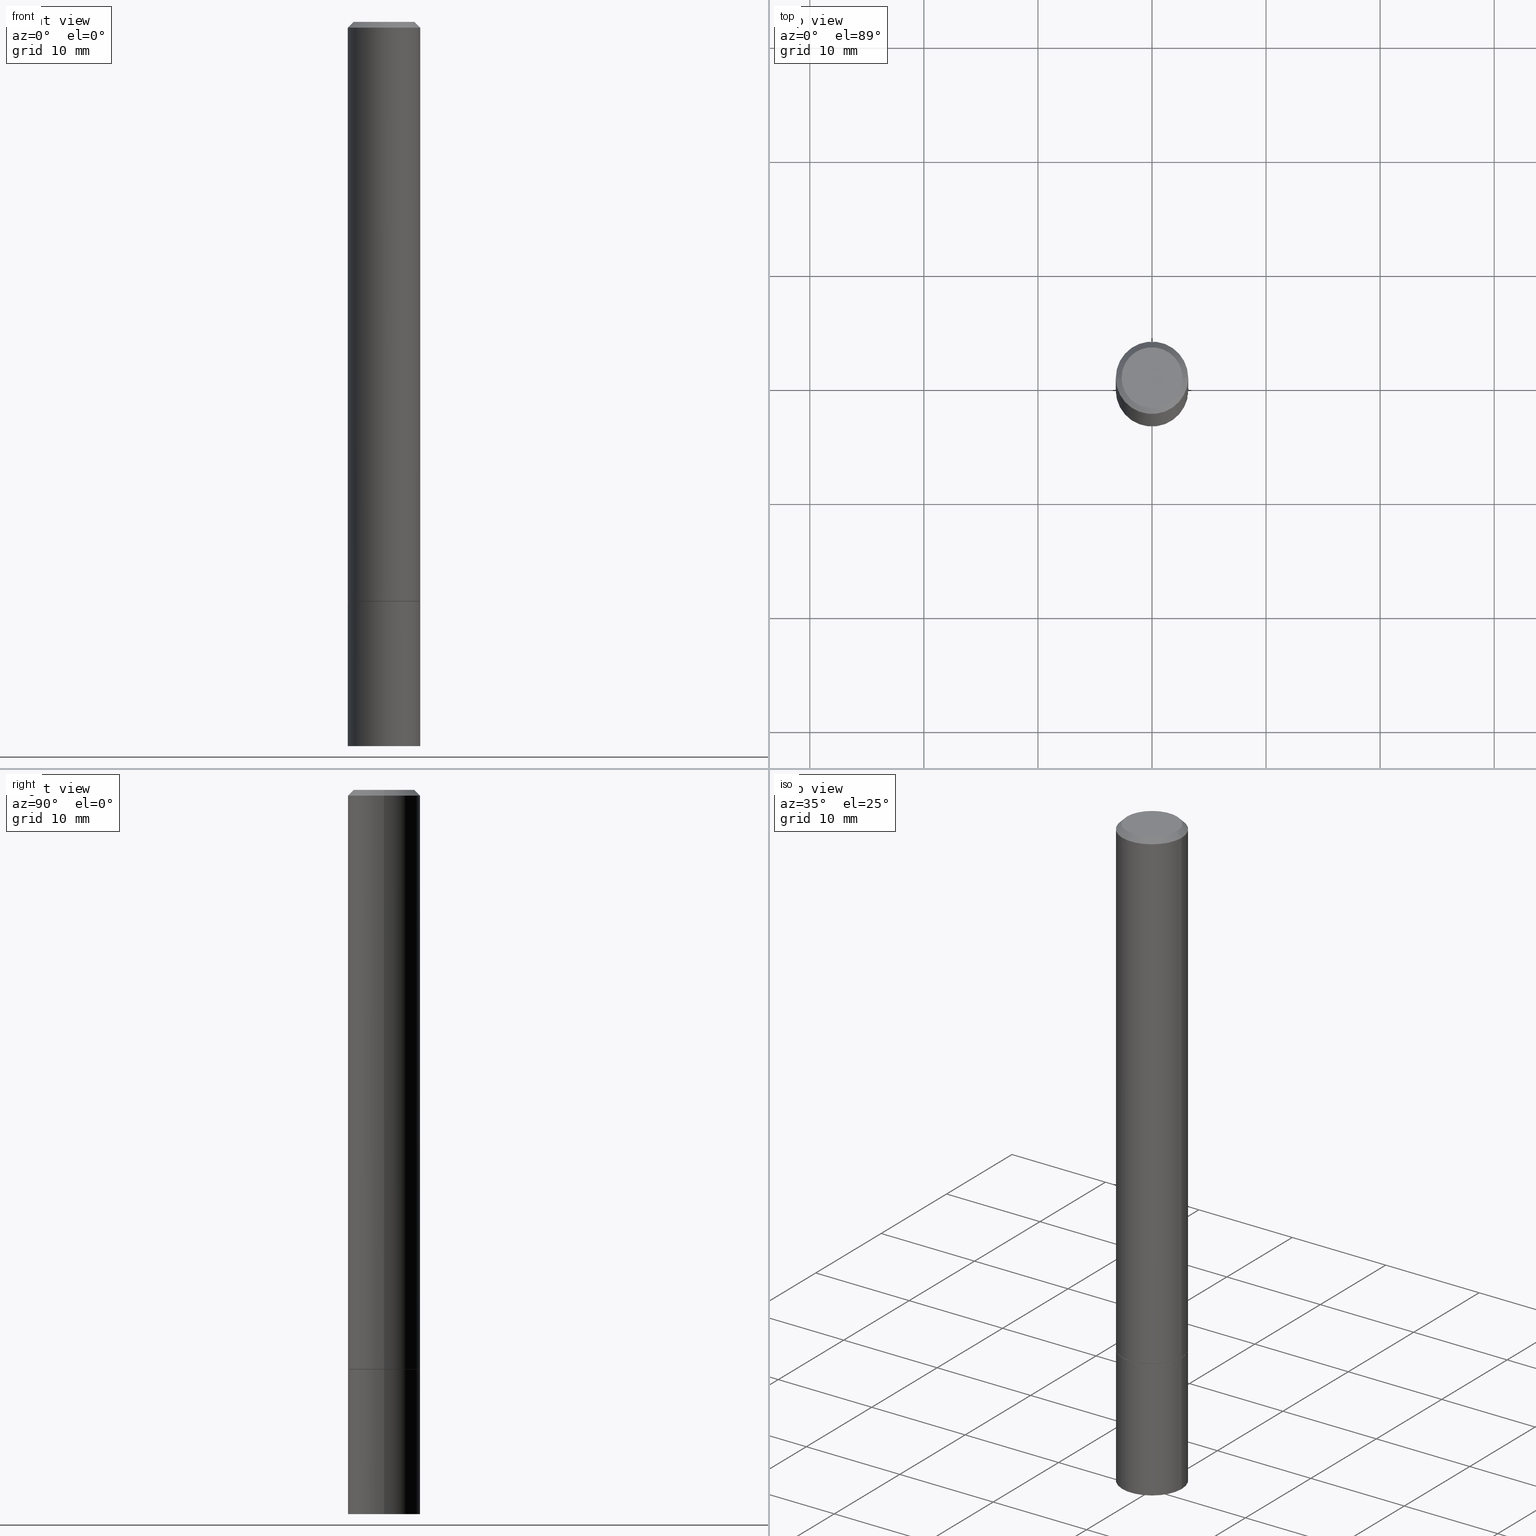
[diagram: canonical four-view strip — front | top / right | iso, engineering-drawing reading convention]
A machine part, canonical four-view strip (front | top / right | iso — engineering-drawing reading convention). The complete STEP part file that produces these views, byte-faithful:
ISO-10303-21;
HEADER;
FILE_DESCRIPTION (( 'STEP AP203' ),
    '1' );
FILE_NAME ('37184.STEP',
    '2024-02-27T20:49:56',
    ( '' ),
    ( '' ),
    'SwSTEP 2.0',
    'SolidWorks 2023',
    '' );
FILE_SCHEMA (( 'CONFIG_CONTROL_DESIGN' ));
ENDSEC;

DATA;
#1 = CIRCLE ( 'NONE', #197, 0.1250000000000000000 ) ;
#2 = VERTEX_POINT ( 'NONE', #170 ) ;
#3 = LOCAL_TIME ( 15, 49, 56.00000000000000000, #119 ) ;
#4 = ORIENTED_EDGE ( 'NONE', *, *, #275, .T. ) ;
#5 = DESIGN_CONTEXT ( 'detailed design', #45, 'design' ) ;
#6 = CALENDAR_DATE ( 2024, 27, 2 ) ;
#7 = APPROVAL_ROLE ( '' ) ;
#8 = SECURITY_CLASSIFICATION_LEVEL ( 'unclassified' ) ;
#9 = CARTESIAN_POINT ( 'NONE',  ( 0.000000000000000000, 0.000000000000000000, 0.000000000000000000 ) ) ;
#10 = DIMENSIONAL_EXPONENTS ( 1.000000000000000000, 0.000000000000000000, 0.000000000000000000, 0.000000000000000000, 0.000000000000000000, 0.000000000000000000, 0.000000000000000000 ) ;
#11 = EDGE_CURVE ( 'NONE', #147, #2, #365, .T. ) ;
#12 = CONICAL_SURFACE ( 'NONE', #345, 0.1239999999999999991, 0.7853981633974141952 ) ;
#13 = SECURITY_CLASSIFICATION ( '', '', #8 ) ;
#14 = DIRECTION ( 'NONE',  ( 1.000000000000000000, -6.982962677686270655E-15, 0.000000000000000000 ) ) ;
#15 = DIRECTION ( 'NONE',  ( 2.438088387897960049E-29, -3.491481338843145188E-15, -1.000000000000000000 ) ) ;
#16 = ORIENTED_EDGE ( 'NONE', *, *, #207, .T. ) ;
#17 = CARTESIAN_POINT ( 'NONE',  ( 4.890937612370280165E-31, -6.982962677686301470E-17, -0.02000000000000003164 ) ) ;
#18 = AXIS2_PLACEMENT_3D ( 'NONE', #52, #169, #289 ) ;
#19 = DIRECTION ( 'NONE',  ( 1.000000000000000000, -6.982962677686270655E-15, 0.000000000000000000 ) ) ;
#20 = DIRECTION ( 'NONE',  ( -2.445468806185136597E-29, 3.491481338843145583E-15, 1.000000000000000000 ) ) ;
#21 = EDGE_LOOP ( 'NONE', ( #108, #232, #200, #326 ) ) ;
#22 = DIRECTION ( 'NONE',  ( -2.445468806185136597E-29, 3.491481338843145583E-15, 1.000000000000000000 ) ) ;
#23 = ORIENTED_EDGE ( 'NONE', *, *, #98, .F. ) ;
#24 = CARTESIAN_POINT ( 'NONE',  ( -0.1250000000000000000, 8.881784197001252323E-16, -6.148668862818632227E-30 ) ) ;
#25 = LOCAL_TIME ( 15, 49, 56.00000000000000000, #94 ) ;
#26 = CARTESIAN_POINT ( 'NONE',  ( 0.1249999999999997641, -9.273918764983027713E-16, -0.02000000000000003164 ) ) ;
#27 = ORIENTED_EDGE ( 'NONE', *, *, #32, .T. ) ;
#28 = ADVANCED_FACE ( 'NONE', ( #56 ), #12, .T. ) ;
#29 = ORIENTED_EDGE ( 'NONE', *, *, #85, .T. ) ;
#30 = PERSON_AND_ORGANIZATION ( #307, #171 ) ;
#31 = AXIS2_PLACEMENT_3D ( 'NONE', #90, #280, #278 ) ;
#32 = EDGE_CURVE ( 'NONE', #308, #194, #252, .T. ) ;
#33 = APPROVAL_DATE_TIME ( #63, #57 ) ;
#34 = COORDINATED_UNIVERSAL_TIME_OFFSET ( 5, 0, .BEHIND. ) ;
#35 = DIRECTION ( 'NONE',  ( 1.000000000000000000, -6.982962677686270655E-15, 0.000000000000000000 ) ) ;
#36 = CIRCLE ( 'NONE', #121, 0.1250000000000000000 ) ;
#37 = PERSON_AND_ORGANIZATION ( #307, #171 ) ;
#38 = COORDINATED_UNIVERSAL_TIME_OFFSET ( 5, 0, .BEHIND. ) ;
#39 = DIRECTION ( 'NONE',  ( 1.000000000000000000, -6.982962677686266711E-15, 0.000000000000000000 ) ) ;
#40 = ADVANCED_FACE ( 'NONE', ( #111 ), #116, .T. ) ;
#41 = VERTEX_POINT ( 'NONE', #315 ) ;
#42 = CC_DESIGN_PERSON_AND_ORGANIZATION_ASSIGNMENT ( #37, #238, ( #246 ) ) ;
#43 = ORIENTED_EDGE ( 'NONE', *, *, #85, .F. ) ;
#44 = FACE_OUTER_BOUND ( 'NONE', #312, .T. ) ;
#45 = APPLICATION_CONTEXT ( 'configuration controlled 3d designs of mechanical parts and assemblies' ) ;
#46 = ORIENTED_EDGE ( 'NONE', *, *, #317, .T. ) ;
#47 = AXIS2_PLACEMENT_3D ( 'NONE', #272, #69, #244 ) ;
#48 = CC_DESIGN_APPROVAL ( #57, ( #246 ) ) ;
#49 = CARTESIAN_POINT ( 'NONE',  ( -0.1239999999999999991, -6.096591230995545328E-15, -2.000000000000000000 ) ) ;
#50 = ORIENTED_EDGE ( 'NONE', *, *, #231, .F. ) ;
#51 = CARTESIAN_POINT ( 'NONE',  ( 0.000000000000000000, 0.000000000000000000, 0.000000000000000000 ) ) ;
#52 = CARTESIAN_POINT ( 'NONE',  ( 8.728703347108443769E-16, 0.1249999999999912709, -2.500000000000000444 ) ) ;
#53 = ORIENTED_EDGE ( 'NONE', *, *, #95, .T. ) ;
#54 = AXIS2_PLACEMENT_3D ( 'NONE', #105, #299, #187 ) ;
#55 =( NAMED_UNIT ( * ) PLANE_ANGLE_UNIT ( ) SI_UNIT ( $, .RADIAN. ) );
#56 = FACE_OUTER_BOUND ( 'NONE', #163, .T. ) ;
#57 = APPROVAL ( #155, 'UNSPECIFIED' ) ;
#58 = CARTESIAN_POINT ( 'NONE',  ( 4.890937612370280165E-31, -6.982962677686301470E-17, -0.02000000000000003164 ) ) ;
#59 = EDGE_CURVE ( 'NONE', #194, #298, #282, .T. ) ;
#60 = CARTESIAN_POINT ( 'NONE',  ( 0.1239999999999999991, -7.848850049719387701E-15, -2.000000000000000000 ) ) ;
#61 = ADVANCED_FACE ( 'NONE', ( #348 ), #156, .T. ) ;
#62 = DIRECTION ( 'NONE',  ( 1.000000000000000000, -6.982962677686265922E-15, 4.876176775795935793E-29 ) ) ;
#63 = DATE_AND_TIME ( #6, #25 ) ;
#64 = DATE_AND_TIME ( #92, #215 ) ;
#65 = AXIS2_PLACEMENT_3D ( 'NONE', #58, #287, #150 ) ;
#66 = VECTOR ( 'NONE', #142, 39.37007874015748143 ) ;
#67 = DIRECTION ( 'NONE',  ( 1.000000000000000000, 0.000000000000000000, 0.000000000000000000 ) ) ;
#68 = CARTESIAN_POINT ( 'NONE',  ( 7.332110811570563480E-16, 0.1049999999999997741, -3.666055405785295052E-16 ) ) ;
#69 = DIRECTION ( 'NONE',  ( -2.445468806185136597E-29, 3.491481338843145583E-15, 1.000000000000000000 ) ) ;
#70 = AXIS2_PLACEMENT_3D ( 'NONE', #199, #364, #77 ) ;
#71 = LINE ( 'NONE', #131, #134 ) ;
#72 = DIRECTION ( 'NONE',  ( 1.000000000000000000, -6.982962677686266711E-15, 4.876176775795935793E-29 ) ) ;
#73 = VERTEX_POINT ( 'NONE', #322 ) ;
#74 = PLANE ( 'NONE',  #296 ) ;
#75 = ORIENTED_EDGE ( 'NONE', *, *, #59, .F. ) ;
#76 = DIRECTION ( 'NONE',  ( -2.445468806185136597E-29, 3.491481338843145583E-15, 1.000000000000000000 ) ) ;
#77 = DIRECTION ( 'NONE',  ( -1.000000000000000000, 6.982962677686266711E-15, 0.000000000000000000 ) ) ;
#78 = EDGE_CURVE ( 'NONE', #41, #73, #36, .T. ) ;
#79 = CIRCLE ( 'NONE', #47, 0.1250000000000000000 ) ;
#80 = CC_DESIGN_APPROVAL ( #176, ( #13 ) ) ;
#81 = EDGE_CURVE ( 'NONE', #100, #308, #324, .T. ) ;
#82 = ORIENTED_EDGE ( 'NONE', *, *, #136, .T. ) ;
#83 = DIRECTION ( 'NONE',  ( -2.445468806185136597E-29, 3.491481338843145583E-15, 1.000000000000000000 ) ) ;
#84 = DATE_AND_TIME ( #182, #263 ) ;
#85 = EDGE_CURVE ( 'NONE', #73, #41, #214, .T. ) ;
#86 =( LENGTH_UNIT ( ) NAMED_UNIT ( * ) SI_UNIT ( $, .METRE. ) );
#87 = PRODUCT ( '37184', '37184', '', ( #351 ) ) ;
#88 = AXIS2_PLACEMENT_3D ( 'NONE', #247, #193, #14 ) ;
#89 =( GEOMETRIC_REPRESENTATION_CONTEXT ( 3 ) GLOBAL_UNCERTAINTY_ASSIGNED_CONTEXT ( ( #124 ) ) GLOBAL_UNIT_ASSIGNED_CONTEXT ( ( #311, #55, #145 ) ) REPRESENTATION_CONTEXT ( 'NONE', 'WORKASPACE' ) );
#90 = CARTESIAN_POINT ( 'NONE',  ( 0.000000000000000000, 0.000000000000000000, 0.000000000000000000 ) ) ;
#91 = PERSON_AND_ORGANIZATION ( #307, #171 ) ;
#92 = CALENDAR_DATE ( 2024, 27, 2 ) ;
#93 = ADVANCED_FACE ( 'NONE', ( #44 ), #267, .F. ) ;
#94 = COORDINATED_UNIVERSAL_TIME_OFFSET ( 5, 0, .BEHIND. ) ;
#95 = EDGE_CURVE ( 'NONE', #338, #41, #71, .T. ) ;
#96 = AXIS2_PLACEMENT_3D ( 'NONE', #138, #224, #329 ) ;
#97 = PERSON_AND_ORGANIZATION_ROLE ( 'design_owner' ) ;
#98 = EDGE_CURVE ( 'NONE', #298, #194, #258, .T. ) ;
#99 = CARTESIAN_POINT ( 'NONE',  ( 4.888492143564087591E-29, -6.979471196347447369E-15, -1.998999999999999888 ) ) ;
#100 = VERTEX_POINT ( 'NONE', #358 ) ;
#101 = DIRECTION ( 'NONE',  ( -2.445468806185136597E-29, 3.491481338843145583E-15, 1.000000000000000000 ) ) ;
#102 = EDGE_LOOP ( 'NONE', ( #305, #363, #4, #190 ) ) ;
#103 = AXIS2_PLACEMENT_3D ( 'NONE', #17, #192, #39 ) ;
#104 = DIRECTION ( 'NONE',  ( -2.445468806185136597E-29, 3.491481338843145583E-15, 1.000000000000000000 ) ) ;
#105 = CARTESIAN_POINT ( 'NONE',  ( 0.000000000000000000, 0.000000000000000000, 0.000000000000000000 ) ) ;
#106 = EDGE_CURVE ( 'NONE', #133, #194, #219, .T. ) ;
#107 = CARTESIAN_POINT ( 'NONE',  ( -0.1249999999999997641, 8.030407079339186601E-16, -0.02000000000000003164 ) ) ;
#108 = ORIENTED_EDGE ( 'NONE', *, *, #333, .T. ) ;
#109 = PLANE ( 'NONE',  #18 ) ;
#110 = CYLINDRICAL_SURFACE ( 'NONE', #31, 0.1249999999999998751 ) ;
#111 = FACE_OUTER_BOUND ( 'NONE', #21, .T. ) ;
#112 = PRODUCT_DEFINITION ( 'UNKNOWN', '', #246, #5 ) ;
#113 = VERTEX_POINT ( 'NONE', #222 ) ;
#114 = AXIS2_PLACEMENT_3D ( 'NONE', #160, #20, #269 ) ;
#115 = CC_DESIGN_SECURITY_CLASSIFICATION ( #13, ( #246 ) ) ;
#116 = CYLINDRICAL_SURFACE ( 'NONE', #233, 0.1250000000000000000 ) ;
#117 = EDGE_CURVE ( 'NONE', #133, #2, #79, .T. ) ;
#118 = LINE ( 'NONE', #107, #288 ) ;
#119 = COORDINATED_UNIVERSAL_TIME_OFFSET ( 5, 0, .BEHIND. ) ;
#120 = LINE ( 'NONE', #60, #153 ) ;
#121 = AXIS2_PLACEMENT_3D ( 'NONE', #297, #104, #19 ) ;
#122 = APPROVAL_PERSON_ORGANIZATION ( #185, #144, #7 ) ;
#123 = PERSON_AND_ORGANIZATION ( #307, #171 ) ;
#124 = UNCERTAINTY_MEASURE_WITH_UNIT (LENGTH_MEASURE( 1.000000000000000082E-05 ), #311, 'distance_accuracy_value', 'NONE');
#125 = PERSON_AND_ORGANIZATION_ROLE ( 'creator' ) ;
#126 = APPLICATION_PROTOCOL_DEFINITION ( 'international standard', 'config_control_design', 1994, #178 ) ;
#127 = CIRCLE ( 'NONE', #271, 0.1250000000000000000 ) ;
#128 = CIRCLE ( 'NONE', #177, 0.1239999999999999991 ) ;
#129 = DIRECTION ( 'NONE',  ( -1.000000000000000000, 6.982962677686265922E-15, -4.876176775795935793E-29 ) ) ;
#130 = ORIENTED_EDGE ( 'NONE', *, *, #11, .T. ) ;
#131 = CARTESIAN_POINT ( 'NONE',  ( 0.1250000000000000000, -8.728703347107833388E-16, 6.095220969744919741E-30 ) ) ;
#132 = FACE_OUTER_BOUND ( 'NONE', #225, .T. ) ;
#133 = VERTEX_POINT ( 'NONE', #217 ) ;
#134 = VECTOR ( 'NONE', #166, 39.37007874015748143 ) ;
#135 = CC_DESIGN_APPROVAL ( #144, ( #112 ) ) ;
#136 = EDGE_CURVE ( 'NONE', #2, #133, #127, .T. ) ;
#137 = DIRECTION ( 'NONE',  ( -1.000000000000000000, 6.982962677686265922E-15, -4.876176775795935793E-29 ) ) ;
#138 = CARTESIAN_POINT ( 'NONE',  ( 4.890937612370273194E-29, -6.982962677686291165E-15, -2.000000000000000000 ) ) ;
#139 = DIRECTION ( 'NONE',  ( 2.445468806185136597E-29, -3.491481338843145583E-15, -1.000000000000000000 ) ) ;
#140 = ORIENTED_EDGE ( 'NONE', *, *, #117, .F. ) ;
#141 = CIRCLE ( 'NONE', #319, 0.1239999999999999991 ) ;
#142 = DIRECTION ( 'NONE',  ( -2.445468806185136877E-29, 3.491481338843145188E-15, 1.000000000000000000 ) ) ;
#143 = EDGE_LOOP ( 'NONE', ( #328, #255, #75, #227 ) ) ;
#144 = APPROVAL ( #183, 'UNSPECIFIED' ) ;
#145 =( NAMED_UNIT ( * ) SI_UNIT ( $, .STERADIAN. ) SOLID_ANGLE_UNIT ( ) );
#146 = ORIENTED_EDGE ( 'NONE', *, *, #341, .F. ) ;
#147 = VERTEX_POINT ( 'NONE', #49 ) ;
#148 = PERSON_AND_ORGANIZATION ( #307, #171 ) ;
#149 = VECTOR ( 'NONE', #295, 39.37007874015748143 ) ;
#150 = DIRECTION ( 'NONE',  ( 1.000000000000000000, -6.982962677686266711E-15, 0.000000000000000000 ) ) ;
#151 = CARTESIAN_POINT ( 'NONE',  ( 4.890937612370280165E-31, -6.982962677686301470E-17, -0.02000000000000003164 ) ) ;
#152 = CARTESIAN_POINT ( 'NONE',  ( 6.113672015462842613E-29, -8.728703347107864943E-15, -2.500000000000000000 ) ) ;
#153 = VECTOR ( 'NONE', #203, 39.37007874015748854 ) ;
#154 = CC_DESIGN_DATE_AND_TIME_ASSIGNMENT ( #260, #261, ( #112 ) ) ;
#155 = APPROVAL_STATUS ( 'not_yet_approved' ) ;
#156 = CYLINDRICAL_SURFACE ( 'NONE', #189, 0.1250000000000000000 ) ;
#157 = FACE_OUTER_BOUND ( 'NONE', #274, .T. ) ;
#158 = AXIS2_PLACEMENT_3D ( 'NONE', #68, #15, #137 ) ;
#159 = DIRECTION ( 'NONE',  ( -2.445468806185136597E-29, 3.491481338843145583E-15, 1.000000000000000000 ) ) ;
#160 = CARTESIAN_POINT ( 'NONE',  ( 0.000000000000000000, 0.000000000000000000, 0.000000000000000000 ) ) ;
#161 = ORIENTED_EDGE ( 'NONE', *, *, #275, .F. ) ;
#162 = LINE ( 'NONE', #356, #149 ) ;
#163 = EDGE_LOOP ( 'NONE', ( #167, #332, #46, #250 ) ) ;
#164 = AXIS2_PLACEMENT_3D ( 'NONE', #242, #353, #62 ) ;
#165 = CIRCLE ( 'NONE', #313, 0.1250000000000000000 ) ;
#166 = DIRECTION ( 'NONE',  ( -2.445468806185136877E-29, 3.491481338843145188E-15, 1.000000000000000000 ) ) ;
#167 = ORIENTED_EDGE ( 'NONE', *, *, #11, .F. ) ;
#168 = CARTESIAN_POINT ( 'NONE',  ( -0.1249999999999997641, 8.030407079339186601E-16, -0.02000000000000003164 ) ) ;
#169 = DIRECTION ( 'NONE',  ( 2.438088387897960049E-29, -3.491481338843145188E-15, -1.000000000000000000 ) ) ;
#170 = CARTESIAN_POINT ( 'NONE',  ( -0.1250000000000000000, -2.636471991862026946E-15, -1.998999999999999888 ) ) ;
#171 = ORGANIZATION ( 'UNSPECIFIED', 'UNSPECIFIED', '' ) ;
#172 = FACE_OUTER_BOUND ( 'NONE', #354, .T. ) ;
#173 = CARTESIAN_POINT ( 'NONE',  ( 4.890937612370273194E-29, -6.982962677686291165E-15, -2.000000000000000000 ) ) ;
#174 = APPROVAL_DATE_TIME ( #344, #176 ) ;
#175 = EDGE_LOOP ( 'NONE', ( #268, #82, #330, #23 ) ) ;
#176 = APPROVAL ( #210, 'UNSPECIFIED' ) ;
#177 = AXIS2_PLACEMENT_3D ( 'NONE', #331, #76, #249 ) ;
#178 = APPLICATION_CONTEXT ( 'configuration controlled 3d designs of mechanical parts and assemblies' ) ;
#179 = SHAPE_DEFINITION_REPRESENTATION ( #262, #321 ) ;
#180 = CARTESIAN_POINT ( 'NONE',  ( -0.1250000000000000000, -6.967654592696952427E-15, -2.500000000000000000 ) ) ;
#181 = ADVANCED_FACE ( 'NONE', ( #132 ), #303, .T. ) ;
#182 = CALENDAR_DATE ( 2024, 27, 2 ) ;
#183 = APPROVAL_STATUS ( 'not_yet_approved' ) ;
#184 = VECTOR ( 'NONE', #206, 39.37007874015748854 ) ;
#185 = PERSON_AND_ORGANIZATION ( #307, #171 ) ;
#186 = EDGE_CURVE ( 'NONE', #2, #298, #162, .T. ) ;
#187 = DIRECTION ( 'NONE',  ( 1.000000000000000000, -6.982962677686265922E-15, 4.876176775795935232E-29 ) ) ;
#188 = FACE_OUTER_BOUND ( 'NONE', #196, .T. ) ;
#189 = AXIS2_PLACEMENT_3D ( 'NONE', #195, #101, #72 ) ;
#190 = ORIENTED_EDGE ( 'NONE', *, *, #98, .T. ) ;
#191 = AXIS2_PLACEMENT_3D ( 'NONE', #151, #139, #362 ) ;
#192 = DIRECTION ( 'NONE',  ( -2.445468806185136597E-29, 3.491481338843145583E-15, 1.000000000000000000 ) ) ;
#193 = DIRECTION ( 'NONE',  ( -2.445468806185136597E-29, 3.491481338843145583E-15, 1.000000000000000000 ) ) ;
#194 = VERTEX_POINT ( 'NONE', #325 ) ;
#195 = CARTESIAN_POINT ( 'NONE',  ( 0.000000000000000000, 0.000000000000000000, 0.000000000000000000 ) ) ;
#196 = EDGE_LOOP ( 'NONE', ( #223, #29 ) ) ;
#197 = AXIS2_PLACEMENT_3D ( 'NONE', #152, #201, #366 ) ;
#198 = CONICAL_SURFACE ( 'NONE', #191, 0.1249999999999997641, 0.7853981633974473908 ) ;
#199 = CARTESIAN_POINT ( 'NONE',  ( 4.890937612370280165E-31, -6.982962677686301470E-17, -0.02000000000000003164 ) ) ;
#200 = ORIENTED_EDGE ( 'NONE', *, *, #78, .F. ) ;
#201 = DIRECTION ( 'NONE',  ( -2.445468806185136597E-29, 3.491481338843145583E-15, 1.000000000000000000 ) ) ;
#202 = DIRECTION ( 'NONE',  ( 0.7071067811865469066, -7.319954787623254468E-15, -0.7071067811865482389 ) ) ;
#203 = DIRECTION ( 'NONE',  ( 0.7071067811865232589, -2.468850131082003836E-15, 0.7071067811865715536 ) ) ;
#204 = VECTOR ( 'NONE', #359, 39.37007874015748143 ) ;
#205 = AXIS2_PLACEMENT_3D ( 'NONE', #9, #213, #67 ) ;
#206 = DIRECTION ( 'NONE',  ( -0.7071067811865232589, 7.493145998870265808E-15, 0.7071067811865715536 ) ) ;
#207 = EDGE_CURVE ( 'NONE', #308, #100, #361, .T. ) ;
#208 = PERSON_AND_ORGANIZATION_ROLE ( 'classification_officer' ) ;
#209 = DIRECTION ( 'NONE',  ( 1.000000000000000000, -6.982962677686266711E-15, 4.876176775795935793E-29 ) ) ;
#210 = APPROVAL_STATUS ( 'not_yet_approved' ) ;
#211 = DIRECTION ( 'NONE',  ( 1.000000000000000000, -6.982962677686267499E-15, 4.876176775795935793E-29 ) ) ;
#212 = PRODUCT_RELATED_PRODUCT_CATEGORY ( 'detail', '', ( #87 ) ) ;
#213 = DIRECTION ( 'NONE',  ( 0.000000000000000000, 0.000000000000000000, 1.000000000000000000 ) ) ;
#214 = CIRCLE ( 'NONE', #88, 0.1250000000000000000 ) ;
#215 = LOCAL_TIME ( 15, 49, 56.00000000000000000, #350 ) ;
#216 = ADVANCED_FACE ( 'NONE', ( #188 ), #74, .F. ) ;
#217 = CARTESIAN_POINT ( 'NONE',  ( 0.1250000000000000000, -7.852341531058230708E-15, -1.998999999999999888 ) ) ;
#218 = CC_DESIGN_PERSON_AND_ORGANIZATION_ASSIGNMENT ( #352, #97, ( #87 ) ) ;
#219 = LINE ( 'NONE', #301, #204 ) ;
#220 = ORIENTED_EDGE ( 'NONE', *, *, #357, .F. ) ;
#221 = CARTESIAN_POINT ( 'NONE',  ( 8.728703347108321496E-16, 0.1249999999999930195, -2.000000000000000444 ) ) ;
#222 = CARTESIAN_POINT ( 'NONE',  ( 0.1239999999999999991, -7.848850049719387701E-15, -2.000000000000000000 ) ) ;
#223 = ORIENTED_EDGE ( 'NONE', *, *, #78, .T. ) ;
#224 = DIRECTION ( 'NONE',  ( -2.445468806185136597E-29, 3.491481338843145583E-15, 1.000000000000000000 ) ) ;
#225 = EDGE_LOOP ( 'NONE', ( #314, #130, #140, #300 ) ) ;
#226 = CARTESIAN_POINT ( 'NONE',  ( 0.1250000000000000000, -9.601573681818648281E-15, -2.500000000000000000 ) ) ;
#227 = ORIENTED_EDGE ( 'NONE', *, *, #106, .F. ) ;
#228 = VECTOR ( 'NONE', #202, 39.37007874015748143 ) ;
#229 = CARTESIAN_POINT ( 'NONE',  ( 0.1049999999999997741, -8.238720831321559881E-16, 5.444276250344138855E-30 ) ) ;
#230 = ORIENTED_EDGE ( 'NONE', *, *, #81, .T. ) ;
#231 = EDGE_CURVE ( 'NONE', #113, #147, #141, .T. ) ;
#232 = ORIENTED_EDGE ( 'NONE', *, *, #357, .T. ) ;
#233 = AXIS2_PLACEMENT_3D ( 'NONE', #234, #340, #209 ) ;
#234 = CARTESIAN_POINT ( 'NONE',  ( 0.000000000000000000, 0.000000000000000000, 0.000000000000000000 ) ) ;
#235 = PERSON_AND_ORGANIZATION_ROLE ( 'design_supplier' ) ;
#236 = CARTESIAN_POINT ( 'NONE',  ( 6.113672015462842613E-29, -8.728703347107864943E-15, -2.500000000000000000 ) ) ;
#237 = APPROVAL_ROLE ( '' ) ;
#238 = PERSON_AND_ORGANIZATION_ROLE ( 'creator' ) ;
#239 = PERSON_AND_ORGANIZATION ( #307, #171 ) ;
#240 = APPROVAL_ROLE ( '' ) ;
#241 = LOCAL_TIME ( 15, 49, 56.00000000000000000, #38 ) ;
#242 = CARTESIAN_POINT ( 'NONE',  ( 4.890937612370273194E-29, -6.982962677686291165E-15, -2.000000000000000000 ) ) ;
#243 = ORIENTED_EDGE ( 'NONE', *, *, #253, .T. ) ;
#244 = DIRECTION ( 'NONE',  ( 1.000000000000000000, -6.982962677686262766E-15, 0.000000000000000000 ) ) ;
#245 = ADVANCED_FACE ( 'NONE', ( #157 ), #264, .F. ) ;
#246 = PRODUCT_DEFINITION_FORMATION_WITH_SPECIFIED_SOURCE ( 'ANY', '', #87, .NOT_KNOWN. ) ;
#247 = CARTESIAN_POINT ( 'NONE',  ( 4.890937612370273194E-29, -6.982962677686291165E-15, -2.000000000000000000 ) ) ;
#248 = DIRECTION ( 'NONE',  ( -2.445468806185136597E-29, 3.491481338843145583E-15, 1.000000000000000000 ) ) ;
#249 = DIRECTION ( 'NONE',  ( 1.000000000000000000, -6.982962677686262766E-15, 0.000000000000000000 ) ) ;
#250 = ORIENTED_EDGE ( 'NONE', *, *, #136, .F. ) ;
#251 = FACE_OUTER_BOUND ( 'NONE', #175, .T. ) ;
#252 = LINE ( 'NONE', #26, #228 ) ;
#253 = EDGE_CURVE ( 'NONE', #279, #338, #1, .T. ) ;
#254 = CYLINDRICAL_SURFACE ( 'NONE', #320, 0.1249999999999998751 ) ;
#255 = ORIENTED_EDGE ( 'NONE', *, *, #186, .T. ) ;
#256 = DIRECTION ( 'NONE',  ( 1.000000000000000000, -6.982962677686262766E-15, 0.000000000000000000 ) ) ;
#257 = EDGE_LOOP ( 'NONE', ( #220, #243, #53, #43 ) ) ;
#258 = CIRCLE ( 'NONE', #103, 0.1249999999999997641 ) ;
#259 = FACE_OUTER_BOUND ( 'NONE', #342, .T. ) ;
#260 = DATE_AND_TIME ( #293, #241 ) ;
#261 = DATE_TIME_ROLE ( 'creation_date' ) ;
#262 = PRODUCT_DEFINITION_SHAPE ( 'NONE', 'NONE',  #112 ) ;
#263 = LOCAL_TIME ( 15, 49, 56.00000000000000000, #34 ) ;
#264 = PLANE ( 'NONE',  #164 ) ;
#265 = ADVANCED_FACE ( 'NONE', ( #259 ), #198, .T. ) ;
#266 = ORIENTED_EDGE ( 'NONE', *, *, #253, .F. ) ;
#267 = PLANE ( 'NONE',  #158 ) ;
#268 = ORIENTED_EDGE ( 'NONE', *, *, #186, .F. ) ;
#269 = DIRECTION ( 'NONE',  ( 1.000000000000000000, -6.982962677686265922E-15, 4.876176775795935232E-29 ) ) ;
#270 = ORIENTED_EDGE ( 'NONE', *, *, #207, .F. ) ;
#271 = AXIS2_PLACEMENT_3D ( 'NONE', #99, #159, #327 ) ;
#272 = CARTESIAN_POINT ( 'NONE',  ( 4.888492143564087591E-29, -6.979471196347447369E-15, -1.998999999999999888 ) ) ;
#273 = APPROVAL_PERSON_ORGANIZATION ( #239, #57, #240 ) ;
#274 = EDGE_LOOP ( 'NONE', ( #50, #146 ) ) ;
#275 = EDGE_CURVE ( 'NONE', #100, #298, #118, .T. ) ;
#276 = CARTESIAN_POINT ( 'NONE',  ( 4.890937612370273194E-29, -6.982962677686291165E-15, -2.000000000000000000 ) ) ;
#277 = CC_DESIGN_DATE_AND_TIME_ASSIGNMENT ( #84, #349, ( #13 ) ) ;
#278 = DIRECTION ( 'NONE',  ( 1.000000000000000000, -6.982962677686267499E-15, 4.876176775795935793E-29 ) ) ;
#279 = VERTEX_POINT ( 'NONE', #180 ) ;
#280 = DIRECTION ( 'NONE',  ( -2.445468806185136597E-29, 3.491481338843145583E-15, 1.000000000000000000 ) ) ;
#281 = ADVANCED_FACE ( 'NONE', ( #172 ), #109, .T. ) ;
#282 = CIRCLE ( 'NONE', #65, 0.1249999999999997641 ) ;
#283 = LENGTH_MEASURE_WITH_UNIT ( LENGTH_MEASURE( 0.02539999999999999897 ), #86 );
#284 = CC_DESIGN_PERSON_AND_ORGANIZATION_ASSIGNMENT ( #30, #208, ( #13 ) ) ;
#285 = ORIENTED_EDGE ( 'NONE', *, *, #59, .T. ) ;
#286 = CALENDAR_DATE ( 2024, 27, 2 ) ;
#287 = DIRECTION ( 'NONE',  ( -2.445468806185136597E-29, 3.491481338843145583E-15, 1.000000000000000000 ) ) ;
#288 = VECTOR ( 'NONE', #309, 39.37007874015748143 ) ;
#289 = DIRECTION ( 'NONE',  ( -1.000000000000000000, 6.982962677686265922E-15, -4.876176775795935793E-29 ) ) ;
#290 = CLOSED_SHELL ( 'NONE', ( #40, #281, #216, #61 ) ) ;
#291 = APPROVAL_DATE_TIME ( #64, #144 ) ;
#292 = CONICAL_SURFACE ( 'NONE', #70, 0.1249999999999997641, 0.7853981633974473908 ) ;
#293 = CALENDAR_DATE ( 2024, 27, 2 ) ;
#294 = ADVANCED_FACE ( 'NONE', ( #251 ), #254, .T. ) ;
#295 = DIRECTION ( 'NONE',  ( -2.445468806185136877E-29, 3.491481338843145188E-15, 1.000000000000000000 ) ) ;
#296 = AXIS2_PLACEMENT_3D ( 'NONE', #221, #304, #129 ) ;
#297 = CARTESIAN_POINT ( 'NONE',  ( 4.890937612370273194E-29, -6.982962677686291165E-15, -2.000000000000000000 ) ) ;
#298 = VERTEX_POINT ( 'NONE', #168 ) ;
#299 = DIRECTION ( 'NONE',  ( -2.445468806185136597E-29, 3.491481338843145583E-15, 1.000000000000000000 ) ) ;
#300 = ORIENTED_EDGE ( 'NONE', *, *, #317, .F. ) ;
#301 = CARTESIAN_POINT ( 'NONE',  ( 0.1249999999999998751, -8.728703347107825500E-16, 6.095220969744913435E-30 ) ) ;
#302 = ADVANCED_FACE ( 'NONE', ( #346 ), #110, .T. ) ;
#303 = CONICAL_SURFACE ( 'NONE', #96, 0.1239999999999999991, 0.7853981633974141952 ) ;
#304 = DIRECTION ( 'NONE',  ( 2.438088387897960049E-29, -3.491481338843145188E-15, -1.000000000000000000 ) ) ;
#305 = ORIENTED_EDGE ( 'NONE', *, *, #32, .F. ) ;
#306 = DIRECTION ( 'NONE',  ( -2.445468806185136597E-29, 3.491481338843145583E-15, 1.000000000000000000 ) ) ;
#307 = PERSON ( 'UNSPECIFIED', 'UNSPECIFIED', 'UNSPECIFIED', ('UNSPECIFIED'), ('UNSPECIFIED'), ('UNSPECIFIED') ) ;
#308 = VERTEX_POINT ( 'NONE', #229 ) ;
#309 = DIRECTION ( 'NONE',  ( -0.7071067811865469066, 2.468850131082249961E-15, -0.7071067811865482389 ) ) ;
#310 = MANIFOLD_SOLID_BREP ( 'Body-Move/Copy2[1]', #290 ) ;
#311 =( CONVERSION_BASED_UNIT ( 'INCH', #283 ) LENGTH_UNIT ( ) NAMED_UNIT ( #10 ) );
#312 = EDGE_LOOP ( 'NONE', ( #230, #16 ) ) ;
#313 = AXIS2_PLACEMENT_3D ( 'NONE', #236, #22, #35 ) ;
#314 = ORIENTED_EDGE ( 'NONE', *, *, #231, .T. ) ;
#315 = CARTESIAN_POINT ( 'NONE',  ( 0.1250000000000000000, -7.855833012397075293E-15, -2.000000000000000000 ) ) ;
#316 = MANIFOLD_SOLID_BREP ( 'Body-Move/Copy2[2]', #337 ) ;
#317 = EDGE_CURVE ( 'NONE', #113, #133, #120, .T. ) ;
#318 = APPLICATION_PROTOCOL_DEFINITION ( 'international standard', 'config_control_design', 1994, #45 ) ;
#319 = AXIS2_PLACEMENT_3D ( 'NONE', #276, #248, #360 ) ;
#320 = AXIS2_PLACEMENT_3D ( 'NONE', #51, #306, #211 ) ;
#321 = ADVANCED_BREP_SHAPE_REPRESENTATION ( '37184', ( #310, #316, #205 ), #89 ) ;
#322 = CARTESIAN_POINT ( 'NONE',  ( -0.1250000000000000000, -6.967654592696952427E-15, -2.000000000000000000 ) ) ;
#323 = ORIENTED_EDGE ( 'NONE', *, *, #333, .F. ) ;
#324 = CIRCLE ( 'NONE', #54, 0.1049999999999997741 ) ;
#325 = CARTESIAN_POINT ( 'NONE',  ( 0.1249999999999997641, -9.273918764983027713E-16, -0.02000000000000003164 ) ) ;
#326 = ORIENTED_EDGE ( 'NONE', *, *, #95, .F. ) ;
#327 = DIRECTION ( 'NONE',  ( 1.000000000000000000, -6.982962677686262766E-15, 0.000000000000000000 ) ) ;
#328 = ORIENTED_EDGE ( 'NONE', *, *, #117, .T. ) ;
#329 = DIRECTION ( 'NONE',  ( 1.000000000000000000, -6.982962677686262766E-15, 0.000000000000000000 ) ) ;
#330 = ORIENTED_EDGE ( 'NONE', *, *, #106, .T. ) ;
#331 = CARTESIAN_POINT ( 'NONE',  ( 4.890937612370273194E-29, -6.982962677686291165E-15, -2.000000000000000000 ) ) ;
#332 = ORIENTED_EDGE ( 'NONE', *, *, #341, .T. ) ;
#333 = EDGE_CURVE ( 'NONE', #338, #279, #165, .T. ) ;
#334 = FACE_OUTER_BOUND ( 'NONE', #102, .T. ) ;
#335 = CARTESIAN_POINT ( 'NONE',  ( -0.1239999999999999991, -6.101889685343766941E-15, -2.000000000000000000 ) ) ;
#336 = CC_DESIGN_PERSON_AND_ORGANIZATION_ASSIGNMENT ( #123, #125, ( #112 ) ) ;
#337 = CLOSED_SHELL ( 'NONE', ( #181, #302, #265, #347, #294, #28, #245, #93 ) ) ;
#338 = VERTEX_POINT ( 'NONE', #226 ) ;
#339 = APPROVAL_PERSON_ORGANIZATION ( #148, #176, #237 ) ;
#340 = DIRECTION ( 'NONE',  ( -2.445468806185136597E-29, 3.491481338843145583E-15, 1.000000000000000000 ) ) ;
#341 = EDGE_CURVE ( 'NONE', #147, #113, #128, .T. ) ;
#342 = EDGE_LOOP ( 'NONE', ( #270, #27, #285, #161 ) ) ;
#343 = LINE ( 'NONE', #24, #66 ) ;
#344 = DATE_AND_TIME ( #286, #3 ) ;
#345 = AXIS2_PLACEMENT_3D ( 'NONE', #173, #83, #256 ) ;
#346 = FACE_OUTER_BOUND ( 'NONE', #143, .T. ) ;
#347 = ADVANCED_FACE ( 'NONE', ( #334 ), #292, .T. ) ;
#348 = FACE_OUTER_BOUND ( 'NONE', #257, .T. ) ;
#349 = DATE_TIME_ROLE ( 'classification_date' ) ;
#350 = COORDINATED_UNIVERSAL_TIME_OFFSET ( 5, 0, .BEHIND. ) ;
#351 = MECHANICAL_CONTEXT ( 'NONE', #178, 'mechanical' ) ;
#352 = PERSON_AND_ORGANIZATION ( #307, #171 ) ;
#353 = DIRECTION ( 'NONE',  ( -2.438088387897960049E-29, 3.491481338843145188E-15, 1.000000000000000000 ) ) ;
#354 = EDGE_LOOP ( 'NONE', ( #323, #266 ) ) ;
#355 = CC_DESIGN_PERSON_AND_ORGANIZATION_ASSIGNMENT ( #91, #235, ( #246 ) ) ;
#356 = CARTESIAN_POINT ( 'NONE',  ( -0.1249999999999998751, 8.881784197001243449E-16, -6.148668862818626622E-30 ) ) ;
#357 = EDGE_CURVE ( 'NONE', #279, #73, #343, .T. ) ;
#358 = CARTESIAN_POINT ( 'NONE',  ( -0.1049999999999997741, 7.681258945454875041E-16, -5.249639473182155366E-30 ) ) ;
#359 = DIRECTION ( 'NONE',  ( -2.445468806185136877E-29, 3.491481338843145188E-15, 1.000000000000000000 ) ) ;
#360 = DIRECTION ( 'NONE',  ( 1.000000000000000000, -6.982962677686262766E-15, 0.000000000000000000 ) ) ;
#361 = CIRCLE ( 'NONE', #114, 0.1049999999999997741 ) ;
#362 = DIRECTION ( 'NONE',  ( -1.000000000000000000, 6.982962677686266711E-15, 0.000000000000000000 ) ) ;
#363 = ORIENTED_EDGE ( 'NONE', *, *, #81, .F. ) ;
#364 = DIRECTION ( 'NONE',  ( 2.445468806185136597E-29, -3.491481338843145583E-15, -1.000000000000000000 ) ) ;
#365 = LINE ( 'NONE', #335, #184 ) ;
#366 = DIRECTION ( 'NONE',  ( 1.000000000000000000, -6.982962677686270655E-15, 0.000000000000000000 ) ) ;
ENDSEC;
END-ISO-10303-21;
